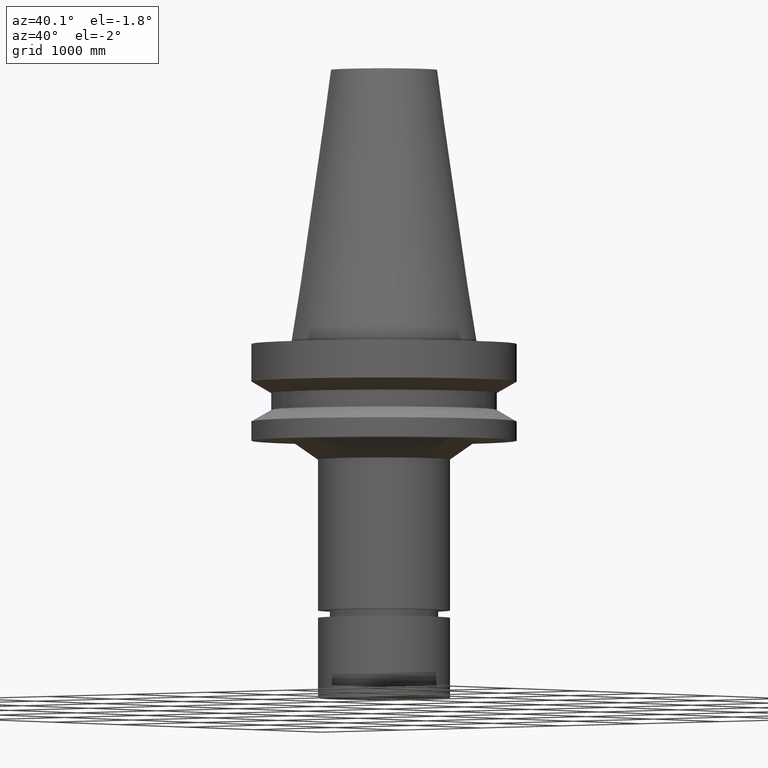
[diagram: clean part render]
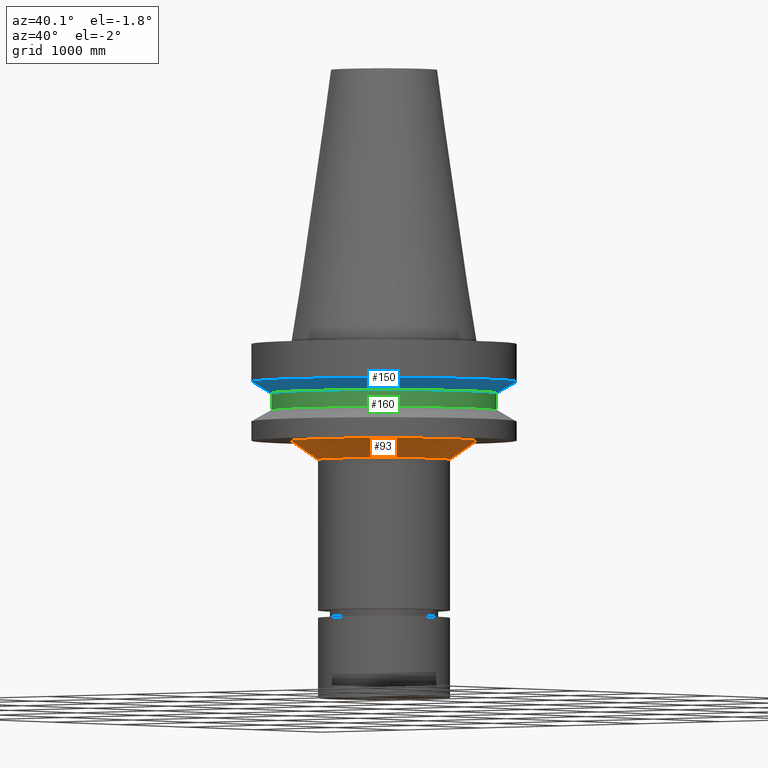
[diagram: same view with three faces highlighted in distinct colors, each labeled with its STEP entity id]
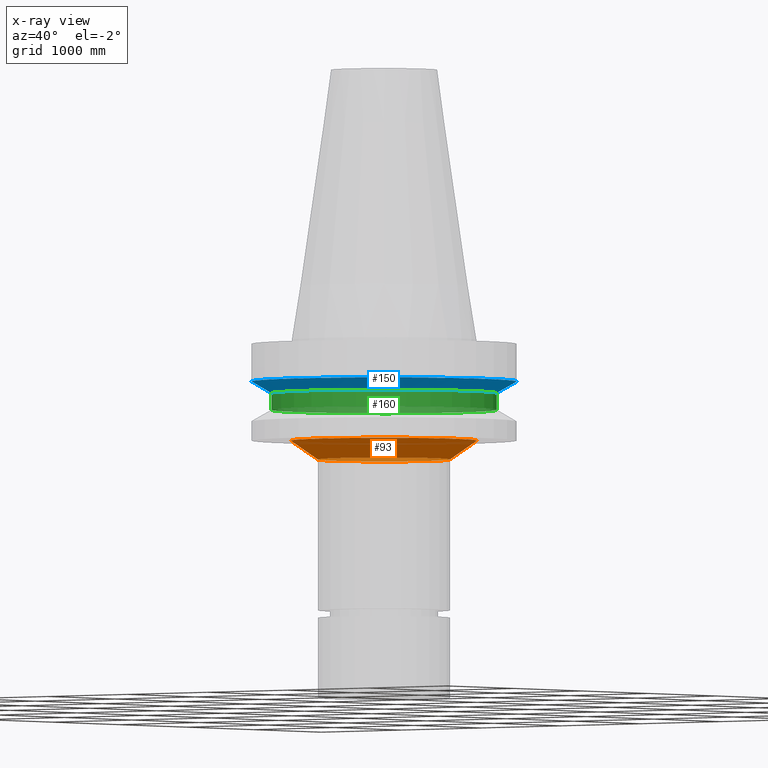
[diagram: x-ray of the same camera — body ghosted, the three highlighted faces saturated]
A machine part, auxiliary view with three faces highlighted in distinct colors.
The next image is the same camera in x-ray (body ghosted, the three faces saturated) — at least one of them is partly hidden behind the body in this view.
Their STEP definitions:

[orange] entity #93 — the highlighted conical surface has half-angle 55.144 deg.
#93=ADVANCED_FACE('Unnamed[1]',(#229,#230),#231,.T.);
#115=EDGE_CURVE('Unnamed[1]',#265,#265,#266,.T.);
#127=EDGE_CURVE('Unnamed[1]',#282,#282,#283,.T.);
#229=FACE_BOUND('',#412,.T.);
#230=FACE_BOUND('',#413,.T.);
#231=CONICAL_SURFACE('',#414,30.0717863357276,0.962446965226469);
#265=VERTEX_POINT('',#457);
#266=CIRCLE('',#458,25.0000000000004);
#282=VERTEX_POINT('',#479);
#283=CIRCLE('',#480,35.1435726714549);
#412=EDGE_LOOP('',(#611));
#413=EDGE_LOOP('',(#612));
#414=AXIS2_PLACEMENT_3D('',#613,#614,#615);
#457=CARTESIAN_POINT('',(2.75941339741642E-015,25.0000000000004,-45.0646406676215));
#458=AXIS2_PLACEMENT_3D('',#652,#653,#654);
#479=CARTESIAN_POINT('',(2.32682891837996E-015,35.1435726714549,-37.9999999999998));
#480=AXIS2_PLACEMENT_3D('',#671,#672,#673);
#611=ORIENTED_EDGE('',*,*,#127,.F.);
#612=ORIENTED_EDGE('',*,*,#115,.T.);
#613=CARTESIAN_POINT('',(2.54312115789819E-015,1.52134307557229E-014,-41.5323203338107));
#614=DIRECTION('',(-6.12323399573677E-017,-1.5261999847712E-017,1.0));
#615=DIRECTION('',(-5.76168069387931E-033,1.0,1.5261999847712E-017));
#652=CARTESIAN_POINT('',(2.75941339741642E-015,1.52673410281196E-014,-45.0646406676215));
#653=DIRECTION('',(-6.12323399573677E-017,-1.52619998477036E-017,1.0));
#654=DIRECTION('',(-5.76168069387672E-033,1.0,1.52619998477036E-017));
#671=CARTESIAN_POINT('',(2.32682891837996E-015,1.51595204833261E-014,-37.9999999999998));
#672=DIRECTION('',(-6.12323399573677E-017,-1.5261999847718E-017,1.0));
#673=DIRECTION('',(-5.76168069387604E-033,1.0,1.5261999847718E-017));

[blue] entity #150 — the highlighted conical surface has half-angle 60 deg.
#75=EDGE_CURVE('Unnamed[1]',#201,#201,#202,.T.);
#104=EDGE_CURVE('Unnamed[1]',#247,#247,#248,.T.);
#150=ADVANCED_FACE('Unnamed[1]',(#315,#316),#317,.T.);
#201=VERTEX_POINT('',#377);
#202=CIRCLE('',#378,42.5);
#247=VERTEX_POINT('',#435);
#248=CIRCLE('',#436,50.0);
#315=FACE_BOUND('',#520,.T.);
#316=FACE_BOUND('',#521,.T.);
#317=CONICAL_SURFACE('',#522,46.25,1.04719755108882);
#377=CARTESIAN_POINT('',(1.2264915470779E-015,42.5,-20.03012702));
#378=AXIS2_PLACEMENT_3D('',#580,#581,#582);
#435=CARTESIAN_POINT('',(9.61347737330674E-016,50.0,-15.7));
#436=AXIS2_PLACEMENT_3D('',#631,#632,#633);
#520=EDGE_LOOP('',(#705));
#521=EDGE_LOOP('',(#706));
#522=AXIS2_PLACEMENT_3D('',#707,#708,#709);
#580=CARTESIAN_POINT('',(1.2264915470779E-015,1.48852642846416E-014,-20.03012702));
#581=DIRECTION('',(-6.12323399573677E-017,-1.52619998477571E-017,1.0));
#582=DIRECTION('',(-5.76168069387766E-033,1.0,1.52619998477571E-017));
#631=CARTESIAN_POINT('',(9.61347737330675E-016,1.48191778867216E-014,-15.7));
#632=DIRECTION('',(-6.12323399573677E-017,-1.52619998477039E-017,1.0));
#633=DIRECTION('',(-5.76168069387682E-033,1.0,1.52619998477039E-017));
#705=ORIENTED_EDGE('',*,*,#104,.F.);
#706=ORIENTED_EDGE('',*,*,#75,.T.);
#707=CARTESIAN_POINT('',(1.09391964220429E-015,1.48522210856816E-014,-17.86506351));
#708=DIRECTION('',(-6.12323399573677E-017,-1.52619998477633E-017,1.0));
#709=DIRECTION('',(-5.76168069387139E-033,1.0,1.52619998477633E-017));

[green] entity #160 — the highlighted cylindrical surface (bore or boss wall) has radius 1079.5 mm, axis along (-0, -0, 1).
#75=EDGE_CURVE('Unnamed[1]',#201,#201,#202,.T.);
#160=ADVANCED_FACE('Unnamed[1]',(#331,#332),#333,.T.);
#177=EDGE_CURVE('Unnamed[1]',#357,#357,#358,.T.);
#201=VERTEX_POINT('',#377);
#202=CIRCLE('',#378,42.5);
#331=FACE_BOUND('',#540,.T.);
#332=FACE_BOUND('',#541,.T.);
#333=CYLINDRICAL_SURFACE('',#542,42.5);
#357=VERTEX_POINT('',#571);
#358=CIRCLE('',#572,42.5);
#377=CARTESIAN_POINT('',(1.2264915470779E-015,42.5,-20.03012702));
#378=AXIS2_PLACEMENT_3D('',#580,#581,#582);
#540=EDGE_LOOP('',(#723));
#541=EDGE_LOOP('',(#724));
#542=AXIS2_PLACEMENT_3D('',#725,#726,#727);
#571=CARTESIAN_POINT('',(1.61468902694397E-015,42.5,-26.3698729800001));
#572=AXIS2_PLACEMENT_3D('',#752,#753,#754);
#580=CARTESIAN_POINT('',(1.2264915470779E-015,1.48852642846416E-014,-20.03012702));
#581=DIRECTION('',(-6.12323399573677E-017,-1.52619998477571E-017,1.0));
#582=DIRECTION('',(-5.76168069387766E-033,1.0,1.52619998477571E-017));
#723=ORIENTED_EDGE('',*,*,#75,.F.);
#724=ORIENTED_EDGE('',*,*,#177,.T.);
#725=CARTESIAN_POINT('',(1.42059028701093E-015,1.49336428855796E-014,-23.2));
#726=DIRECTION('',(-6.12323399573677E-017,-1.52619998477571E-017,1.0));
#727=DIRECTION('',(-5.76168069387766E-033,1.0,1.52619998477571E-017));
#752=CARTESIAN_POINT('',(1.61468902694397E-015,1.49820214865177E-014,-26.3698729800001));
#753=DIRECTION('',(-6.12323399573677E-017,-1.52619998477571E-017,1.0));
#754=DIRECTION('',(-5.76168069387766E-033,1.0,1.52619998477571E-017));